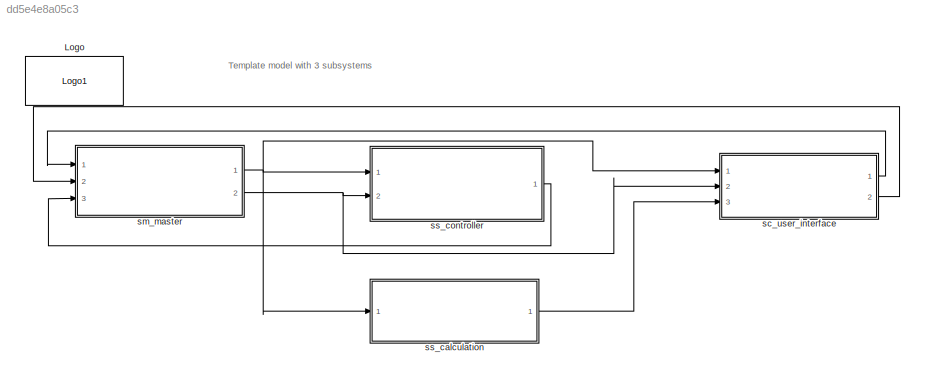
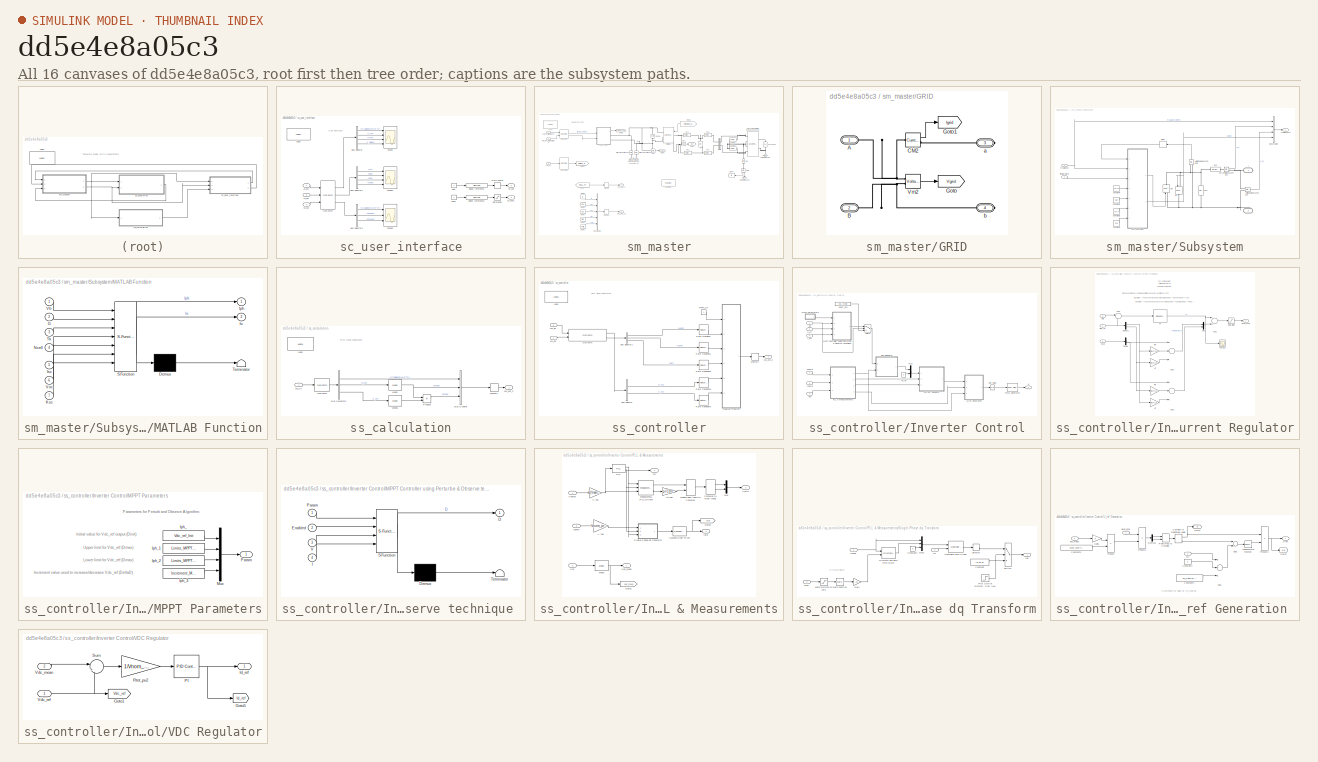
[diagram: thumbnail index - all 16 canvases of the model, root first then tree order]
MODEL slx_dd5e4e8a05c3
KIND model
BLOCK [Reference] Logo  REF=opal_lib/Logo1
  Ports = []
  SourceBlock = opal_lib/Logo1
  SourceType = Opal-RT logo
  vide = []
BLOCK [SubSystem] sc_user_interface
  Ports = [3, 2]
  RequestExecContextInheritance = off
BLOCK [BusSelector] sc_user_interface/Bus Selector
  OutputSignals = Irradiance(W/m^2),I_PV,V_PV,I_Diode
  Ports = [1, 4]
BLOCK [BusSelector] sc_user_interface/Bus Selector1
  OutputSignals = Ig,Vinv,Vdc,Igrid
  Ports = [1, 4]
BLOCK [BusSelector] sc_user_interface/Bus Selector2
  OutputSignals = Irradiance(W/m^2),Vmean,Pmean
  Ports = [1, 3]
BLOCK [Reference] sc_user_interface/Logo  REF=opal_lib/Logo1
  Ports = []
  SourceBlock = opal_lib/Logo1
  SourceType = Opal-RT logo
  vide = []
BLOCK [Reference] sc_user_interface/OpComm  REF=rtlab/OpComm
  Interpolation = on
  Missed_Data = off
  Offset = off
  Ports = [3, 3]
  Samples = off
  Sim_Time = off
  SourceBlock = rtlab/OpComm
  SourceType = RT-LAB OpComm
  Synchronization = on
  Threshold = 1.0
  dynSigOut = off
  from_console = 0
  groupe_acq = 1
  nbport = 3
  st = 0
  subsys_rate = 0
  warning_done = off
  writeOpCommFile = off
BLOCK [RateLimiter] sc_user_interface/Rate Limiter
  FallingSlewLimit = -8000
  InitialCondition = 1000
  RisingSlewLimit = 8000
  SampleTimeMode = inherited
BLOCK [Saturate] sc_user_interface/Saturation
  InputPortMap = u0
  LowerLimit = 5
  Ports = [1, 1]
  UpperLimit = 55
BLOCK [Scope] sc_user_interface/Scope
  DataFormat = StructureWithTime
  Floating = off
  NumInputPorts = 4
  Ports = [4]
  SampleTime = 0
  ShowLegends = off
  YMax = 100~5~5~5
  YMin = 0~-5~-5~-5
BLOCK [Scope] sc_user_interface/Scope1
  DataFormat = StructureWithTime
  Floating = off
  NumInputPorts = 4
  Ports = [4]
  SampleTime = 0
  SaveName = ScopeData1
  ShowLegends = off
  YMax = 100~5~5~5
  YMin = 0~-5~-5~-5
BLOCK [Scope] sc_user_interface/Scope2
  DataFormat = StructureWithTime
  Floating = off
  NumInputPorts = 3
  Ports = [3]
  SampleTime = 0
  SaveName = ScopeData2
  ShowLegends = off
  YMax = 100~5~5
  YMin = 0~-5~-5
BLOCK [Reference] sc_user_interface/adjust reference  REF=simulink/Math
Operations/Slider
Gain
  Ports = [1, 1]
  SourceBlock = simulink/Math\nOperations/Slider\nGain
  SourceType = Slider Gain
  gain = 500
  high = 1000
  low = 0
BLOCK [Reference] sc_user_interface/adjust reference1  REF=simulink/Math
Operations/Slider
Gain
  Ports = [1, 1]
  SourceBlock = simulink/Math\nOperations/Slider\nGain
  SourceType = Slider Gain
  gain = 25
  high = 60
  low = 0
BLOCK [Constant] sc_user_interface/one
BLOCK [Constant] sc_user_interface/one1
BLOCK [Inport] sc_user_interface/sc_in1
  IconDisplay = Port number
BLOCK [Inport] sc_user_interface/sc_in2
  IconDisplay = Port number
  Port = 2
BLOCK [Inport] sc_user_interface/sc_in3
  IconDisplay = Port number
  Port = 3
BLOCK [Outport] sc_user_interface/sc_out
  IconDisplay = Port number
BLOCK [Outport] sc_user_interface/sc_out1
  IconDisplay = Port number
  Port = 2
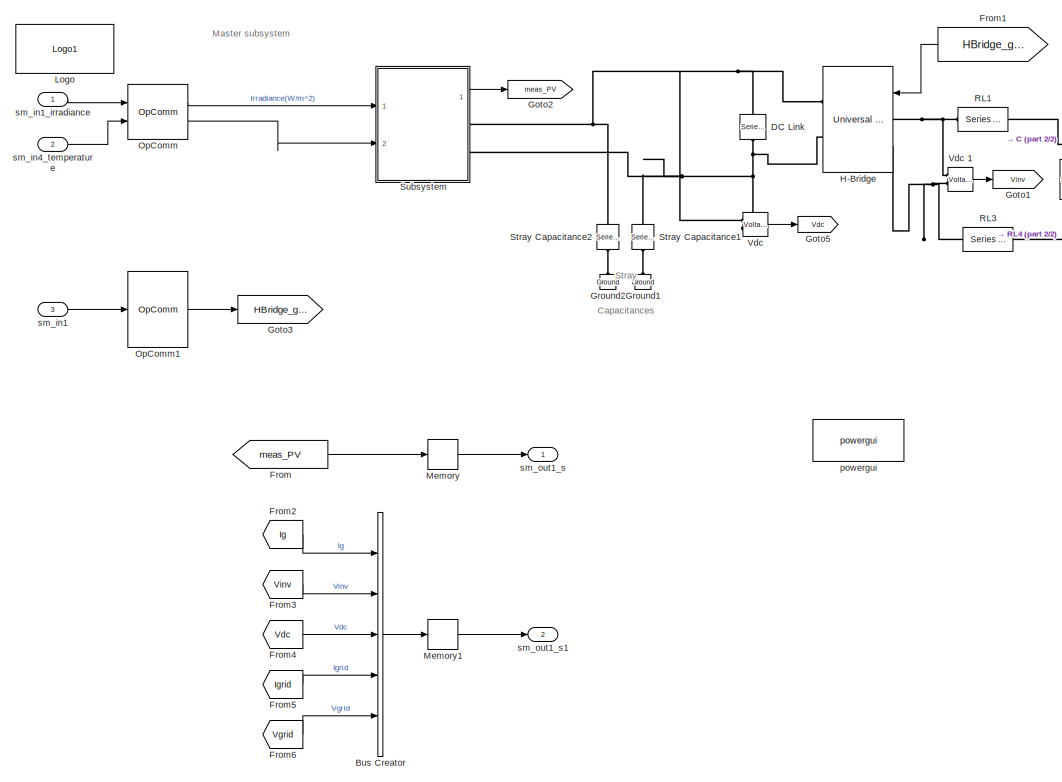
[diagram: sm_master - part 1/2, center side, full height]
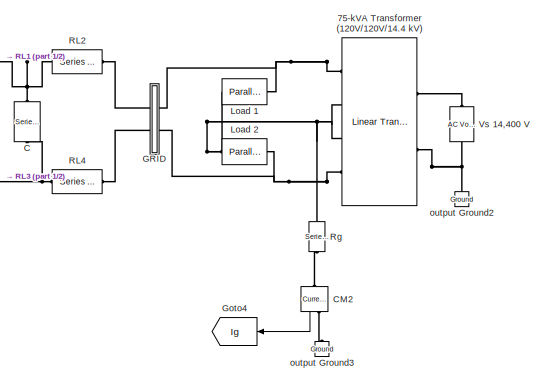
[diagram: sm_master - part 2/2, middle right region]
BLOCK [SubSystem] sm_master
  Ports = [3, 2]
  RequestExecContextInheritance = off
BLOCK [Reference] sm_master/75-kVA Transformer (120V//120V//14.4 kV)  REF=powerlib/Elements/Linear Transformer
  DataType = off
  Measurements = None
  NominalPower = [75e3,60]
  Ports = [0, 0, 0, 0, 0, 2, 4]
  RmLm = [50,50]
  SourceBlock = powerlib/Elements/Linear Transformer
  SourceType = Linear Transformer
  ThreeWindings = on
  UNITS = pu
  winding1 = [14.4e3 0.01,0.03]
  winding2 = [120,0.02,0]
  winding3 = [120,0.02,0]
BLOCK [BusCreator] sm_master/Bus Creator
  DisplayOption = bar
  Inputs = 5
  Ports = [5, 1]
BLOCK [Reference] sm_master/C  REF=powerlib/Elements/Series RLC Load
  ActivePower = 10.5
  AttributesFormatString = \n
  CapacitivePower = 525
  InductivePower = 0
  InitialCurrent = 0
  InitialVoltage = 0
  LConnTagsString = a
  Measurements = None
  NominalFrequency = 60
  NominalVoltage = 240
  Ports = [0, 0, 0, 0, 0, 1, 1]
  RConnTagsString = __new0
  SetiL0 = off
  Setx0 = off
  SourceBlock = powerlib/Elements/Series RLC Load
  SourceType = Series RLC Load
BLOCK [Reference] sm_master/CM2  REF=powerlib/Measurements/Current Measurement
  OutputType = Complex
  PSBequivalent = 0
  PhasorSimulation = off
  Ports = [0, 1, 0, 0, 0, 1, 1]
  SourceBlock = powerlib/Measurements/Current Measurement
  SourceType = Current Measurement
  UserDataPersistent = on
BLOCK [Reference] sm_master/DC Link  REF=powerlib/Elements/Series RLC Branch
  AttributesFormatString = \n
  BranchType = C
  Capacitance = 3000e-6
  Inductance = 1.0
  InitialCurrent = 0
  InitialVoltage = 425
  LConnTagsString = __new0
  Measurements = None
  Ports = [0, 0, 0, 0, 0, 1, 1]
  RConnTagsString = __new0
  Resistance = 1.0
  SetiL0 = off
  Setx0 = on
  SourceBlock = powerlib/Elements/Series RLC Branch
  SourceType = Series RLC Branch
BLOCK [From] sm_master/From
  GotoTag = meas_PV
  TagVisibility = global
BLOCK [From] sm_master/From1
  GotoTag = HBridge_gate
  TagVisibility = global
BLOCK [From] sm_master/From2
  GotoTag = Ig
  TagVisibility = global
BLOCK [From] sm_master/From3
  GotoTag = Vinv
  TagVisibility = global
BLOCK [From] sm_master/From4
  GotoTag = Vdc
  TagVisibility = global
BLOCK [From] sm_master/From5
  GotoTag = Igrid
  TagVisibility = global
BLOCK [From] sm_master/From6
  GotoTag = Vgrid
  TagVisibility = global
BLOCK [SubSystem] sm_master/GRID
  Ports = [0, 0, 0, 0, 0, 2, 2]
  RequestExecContextInheritance = off
BLOCK [PMIOPort] sm_master/GRID/A
  Port = 1
  Side = Left
BLOCK [PMIOPort] sm_master/GRID/B
  Port = 2
  Side = Left
BLOCK [Reference] sm_master/GRID/CM2  REF=powerlib/Measurements/Current Measurement
  OutputType = Complex
  PSBequivalent = 0
  PhasorSimulation = off
  Ports = [0, 1, 0, 0, 0, 1, 1]
  SourceBlock = powerlib/Measurements/Current Measurement
  SourceType = Current Measurement
  UserDataPersistent = on
BLOCK [Goto] sm_master/GRID/Goto
  GotoTag = Vgrid
  TagVisibility = global
BLOCK [Goto] sm_master/GRID/Goto1
  GotoTag = Igrid
  TagVisibility = global
BLOCK [Reference] sm_master/GRID/Vm2  REF=powerlib/Measurements/Voltage Measurement
  OutputType = Complex
  PSBequivalent = 0
  PhasorSimulation = off
  Ports = [0, 1, 0, 0, 0, 2]
  SourceBlock = powerlib/Measurements/Voltage Measurement
  SourceType = Voltage Measurement
  UserDataPersistent = on
BLOCK [PMIOPort] sm_master/GRID/a
  Port = 3
  Side = Right
BLOCK [PMIOPort] sm_master/GRID/b
  Port = 4
  Side = Right
BLOCK [Goto] sm_master/Goto1
  GotoTag = Vinv
  TagVisibility = global
BLOCK [Goto] sm_master/Goto2
  GotoTag = meas_PV
  TagVisibility = global
BLOCK [Goto] sm_master/Goto3
  GotoTag = HBridge_gate
  TagVisibility = global
BLOCK [Goto] sm_master/Goto4
  GotoTag = Ig
  TagVisibility = global
BLOCK [Goto] sm_master/Goto5
  GotoTag = Vdc
  TagVisibility = global
BLOCK [Reference] sm_master/Ground1  REF=powerlib/Elements/Ground
  LConnTagsString = a
  Ports = [0, 0, 0, 0, 0, 1]
  SourceBlock = powerlib/Elements/Ground
  SourceType = Ground
BLOCK [Reference] sm_master/Ground2  REF=powerlib/Elements/Ground
  LConnTagsString = a
  Ports = [0, 0, 0, 0, 0, 1]
  SourceBlock = powerlib/Elements/Ground
  SourceType = Ground
BLOCK [Reference] sm_master/H-Bridge   REF=powerlib/Power
Electronics/Universal Bridge
  Arms = 2
  Device = IGBT / Diodes
  ForwardVoltage = 0
  ForwardVoltages = [ 0 0 ]
  GTOparameters = [ 10e-6 , 20e-6 ]
  IGBTparameters = [ 1e-6 , 2e-6 ]*0
  Lon = 0
  Measurements = None
  Measurements_2 = None
  Ports = [1, 0, 0, 0, 0, 2, 2]
  Ron = 1e-3
  SnubberCapacitance = inf
  SnubberResistance = 1e6
  SourceBlock = powerlib/Power\nElectronics/Universal Bridge
  SourceType = Universal Bridge
  converterType = Rectifier
BLOCK [Reference] sm_master/Load 1  REF=powerlib/Elements/Parallel RLC Load
  ActivePower = 5e3
  AttributesFormatString = \n
  CapacitivePower = 0
  InductivePower = 2e3
  InitialCurrent = 0
  InitialVoltage = 0
  LConnTagsString = a
  Measurements = None
  NominalFrequency = 50
  NominalVoltage = 120
  Ports = [0, 0, 0, 0, 0, 1, 1]
  RConnTagsString = __new0
  SetiL0 = off
  Setx0 = off
  SourceBlock = powerlib/Elements/Parallel RLC Load
  SourceType = Parallel RLC Load
BLOCK [Reference] sm_master/Load 2  REF=powerlib/Elements/Parallel RLC Load
  ActivePower = 5e3
  AttributesFormatString = \n
  CapacitivePower = 0
  InductivePower = 2e3
  InitialCurrent = 0
  InitialVoltage = 0
  LConnTagsString = a
  Measurements = None
  NominalFrequency = 50
  NominalVoltage = 120
  Ports = [0, 0, 0, 0, 0, 1, 1]
  RConnTagsString = __new0
  SetiL0 = off
  Setx0 = off
  SourceBlock = powerlib/Elements/Parallel RLC Load
  SourceType = Parallel RLC Load
BLOCK [Reference] sm_master/Logo  REF=opal_lib/Logo1
  Ports = []
  SourceBlock = opal_lib/Logo1
  SourceType = Opal-RT logo
  vide = []
BLOCK [Memory] sm_master/Memory
  InheritSampleTime = on
BLOCK [Memory] sm_master/Memory1
  InheritSampleTime = on
BLOCK [Reference] sm_master/OpComm  REF=rtlab/OpComm
  Interpolation = on
  Missed_Data = off
  Offset = off
  Ports = [2, 2]
  Samples = off
  Sim_Time = off
  SourceBlock = rtlab/OpComm
  SourceType = RT-LAB OpComm
  Synchronization = on
  Threshold = 1.0
  dynSigOut = off
  from_console = 1
  groupe_acq = 1
  nbport = 2
  st = 0
  subsys_rate = 0
  warning_done = off
  writeOpCommFile = off
BLOCK [Reference] sm_master/OpComm1  REF=rtlab/OpComm
  Interpolation = on
  Missed_Data = off
  Offset = off
  Ports = [1, 1]
  Samples = off
  Sim_Time = off
  SourceBlock = rtlab/OpComm
  SourceType = RT-LAB OpComm
  Synchronization = on
  Threshold = 1.0
  dynSigOut = off
  from_console = 0
  groupe_acq = 1
  nbport = 1
  st = 0
  subsys_rate = 0
  warning_done = off
  writeOpCommFile = off
BLOCK [Reference] sm_master/RL1  REF=powerlib/Elements/Series RLC Branch
  BranchType = RL
  Capacitance = 1e-6
  Inductance = 2.183e-3
  InitialCurrent = 0
  InitialVoltage = 0
  LConnTagsString = __new0
  Measurements = None
  Ports = [0, 0, 0, 0, 0, 1, 1]
  RConnTagsString = __new0
  Resistance = 8.23e-3
  SetiL0 = off
  Setx0 = off
  SourceBlock = powerlib/Elements/Series RLC Branch
  SourceType = Series RLC Branch
BLOCK [Reference] sm_master/RL2  REF=powerlib/Elements/Series RLC Branch
  BranchType = RL
  Capacitance = 1e-6
  Inductance = 2.183e-3
  InitialCurrent = 0
  InitialVoltage = 0
  LConnTagsString = __new0
  Measurements = None
  Ports = [0, 0, 0, 0, 0, 1, 1]
  RConnTagsString = __new0
  Resistance = 8.23e-3
  SetiL0 = off
  Setx0 = off
  SourceBlock = powerlib/Elements/Series RLC Branch
  SourceType = Series RLC Branch
BLOCK [Reference] sm_master/RL3  REF=powerlib/Elements/Series RLC Branch
  BranchType = RL
  Capacitance = 1e-6
  Inductance = 2.183e-3
  InitialCurrent = 0
  InitialVoltage = 0
  LConnTagsString = __new0
  Measurements = None
  Ports = [0, 0, 0, 0, 0, 1, 1]
  RConnTagsString = __new0
  Resistance = 8.23e-3
  SetiL0 = off
  Setx0 = off
  SourceBlock = powerlib/Elements/Series RLC Branch
  SourceType = Series RLC Branch
BLOCK [Reference] sm_master/RL4  REF=powerlib/Elements/Series RLC Branch
  BranchType = RL
  Capacitance = 1e-6
  Inductance = 2.183e-3
  InitialCurrent = 0
  InitialVoltage = 0
  LConnTagsString = __new0
  Measurements = None
  Ports = [0, 0, 0, 0, 0, 1, 1]
  RConnTagsString = __new0
  Resistance = 8.23e-3
  SetiL0 = off
  Setx0 = off
  SourceBlock = powerlib/Elements/Series RLC Branch
  SourceType = Series RLC Branch
BLOCK [Reference] sm_master/Rg  REF=powerlib/Elements/Series RLC Branch
  BranchType = R
  Capacitance = 50e-9
  Inductance = 1
  InitialCurrent = 0
  InitialVoltage = 0
  LConnTagsString = __new0
  Measurements = None
  Ports = [0, 0, 0, 0, 0, 1, 1]
  RConnTagsString = __new0
  Resistance = 0.2
  SetiL0 = off
  Setx0 = off
  SourceBlock = powerlib/Elements/Series RLC Branch
  SourceType = Series RLC Branch
BLOCK [Reference] sm_master/Stray Capacitance1  REF=powerlib/Elements/Series RLC Branch
  BranchType = C
  Capacitance = 4e-9
  Inductance = 1
  InitialCurrent = 0
  InitialVoltage = 0
  LConnTagsString = __new0
  Measurements = None
  Ports = [0, 0, 0, 0, 0, 1, 1]
  RConnTagsString = __new0
  Resistance = 1e-3
  SetiL0 = off
  Setx0 = off
  SourceBlock = powerlib/Elements/Series RLC Branch
  SourceType = Series RLC Branch
BLOCK [Reference] sm_master/Stray Capacitance2  REF=powerlib/Elements/Series RLC Branch
  BranchType = C
  Capacitance = 4e-9
  Inductance = 1
  InitialCurrent = 0
  InitialVoltage = 0
  LConnTagsString = __new0
  Measurements = None
  Ports = [0, 0, 0, 0, 0, 1, 1]
  RConnTagsString = __new0
  Resistance = 1e-3
  SetiL0 = off
  Setx0 = off
  SourceBlock = powerlib/Elements/Series RLC Branch
  SourceType = Series RLC Branch
BLOCK [SubSystem] sm_master/Subsystem
  Ports = [2, 1, 0, 0, 0, 0, 2]
  RequestExecContextInheritance = off
BLOCK [PMIOPort] sm_master/Subsystem/+
  Port = 1
  Side = Right
BLOCK [PMIOPort] sm_master/Subsystem/-
  Port = 2
  Side = Right
BLOCK [BusCreator] sm_master/Subsystem/Bus Creator
  DisplayOption = bar
  Ports = [4, 1]
BLOCK [Constant] sm_master/Subsystem/Constant1
  Value = 8.55
BLOCK [Constant] sm_master/Subsystem/Constant2
  Value = 37.4*14
BLOCK [Constant] sm_master/Subsystem/Constant3
  Value = 0.06
BLOCK [Constant] sm_master/Subsystem/Constant4
  Value = 60*14
BLOCK [Reference] sm_master/Subsystem/Current Measurement  REF=powerlib/Measurements/Current Measurement
  OutputType = Complex
  PSBequivalent = 0
  PhasorSimulation = off
  Ports = [0, 1, 0, 0, 0, 1, 1]
  SourceBlock = powerlib/Measurements/Current Measurement
  SourceType = Current Measurement
  UserDataPersistent = on
BLOCK [Delay] sm_master/Subsystem/Delay
  DelayLength = 1
  InitialCondition = 0
  InputPortMap = u0
  Ports = [1, 1]
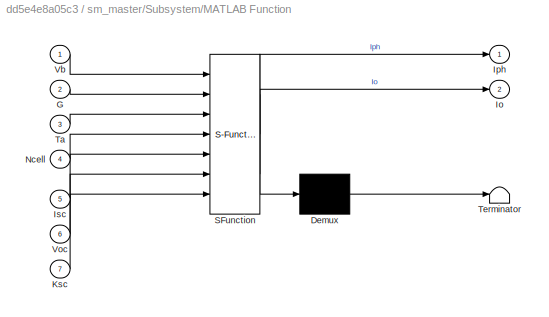
BLOCK [SubSystem] sm_master/Subsystem/MATLAB Function
  ErrorFcn = Stateflow.Translate.translate
  PermitHierarchicalResolution = ExplicitOnly
  Ports = [7, 2]
  RequestExecContextInheritance = off
  SFBlockType = MATLAB Function
  TreatAsAtomicUnit = on
BLOCK [Demux] sm_master/Subsystem/MATLAB Function/ Demux 
  Outputs = 1
  Ports = [1, 1]
BLOCK [S-Function] sm_master/Subsystem/MATLAB Function/ SFunction 
  EnableBusSupport = on
  FunctionName = sf_sfun
  PortCounts = [7 3]
  Ports = [7, 3]
  Tag = Stateflow S-Function my_pv_system_back 1
BLOCK [Terminator] sm_master/Subsystem/MATLAB Function/ Terminator 
BLOCK [Inport] sm_master/Subsystem/MATLAB Function/G
  IconDisplay = Port number
  Port = 2
BLOCK [Outport] sm_master/Subsystem/MATLAB Function/Io
  IconDisplay = Port number
  Port = 2
BLOCK [Outport] sm_master/Subsystem/MATLAB Function/Iph
  IconDisplay = Port number
BLOCK [Inport] sm_master/Subsystem/MATLAB Function/Isc
  IconDisplay = Port number
  Port = 5
BLOCK [Inport] sm_master/Subsystem/MATLAB Function/Ksc
  IconDisplay = Port number
  Port = 7
BLOCK [Inport] sm_master/Subsystem/MATLAB Function/Ncell
  IconDisplay = Port number
  Port = 4
BLOCK [Inport] sm_master/Subsystem/MATLAB Function/Ta
  IconDisplay = Port number
  Port = 3
BLOCK [Inport] sm_master/Subsystem/MATLAB Function/Vb
  IconDisplay = Port number
BLOCK [Inport] sm_master/Subsystem/MATLAB Function/Voc
  IconDisplay = Port number
  Port = 6
BLOCK [Outport] sm_master/Subsystem/PVmeasure
  IconDisplay = Port number
BLOCK [Reference] sm_master/Subsystem/RL2  REF=powerlib/Elements/Series RLC Branch
  BranchType = R
  Capacitance = 1e-6
  Inductance = 2.183e-3
  InitialCurrent = 0
  InitialVoltage = 0
  LConnTagsString = __new0
  Measurements = None
  Ports = [0, 0, 0, 0, 0, 1, 1]
  RConnTagsString = __new0
  Resistance = 0.247*14
  SetiL0 = off
  Setx0 = off
  SourceBlock = powerlib/Elements/Series RLC Branch
  SourceType = Series RLC Branch
BLOCK [Reference] sm_master/Subsystem/RL3  REF=powerlib/Elements/Series RLC Branch
  BranchType = R
  Capacitance = 1e-6
  Inductance = 2.183e-3
  InitialCurrent = 0
  InitialVoltage = 0
  LConnTagsString = __new0
  Measurements = None
  Ports = [0, 0, 0, 0, 0, 1, 1]
  RConnTagsString = __new0
  Resistance = 301.8*14
  SetiL0 = off
  Setx0 = off
  SourceBlock = powerlib/Elements/Series RLC Branch
  SourceType = Series RLC Branch
BLOCK [Reference] sm_master/Subsystem/Voltage Measurement  REF=powerlib/Measurements/Voltage Measurement
  OutputType = Complex
  PSBequivalent = 0
  PhasorSimulation = off
  Ports = [0, 1, 0, 0, 0, 2]
  SourceBlock = powerlib/Measurements/Voltage Measurement
  SourceType = Voltage Measurement
  UserDataPersistent = on
BLOCK [Reference] sm_master/Subsystem/Voltage Measurement1  REF=powerlib/Measurements/Voltage Measurement
  OutputType = Complex
  PSBequivalent = 0
  PhasorSimulation = off
  Ports = [0, 1, 0, 0, 0, 2]
  SourceBlock = powerlib/Measurements/Voltage Measurement
  SourceType = Voltage Measurement
  UserDataPersistent = on
BLOCK [Reference] sm_master/Subsystem/io   REF=powerlib/Electrical
Sources/Controlled Current Source
  Amplitude = 8.05
  Frequency = 0
  Initialize = on
  Measurements = None
  Phase = 0
  Ports = [1, 0, 0, 0, 0, 1, 1]
  SourceBlock = powerlib/Electrical\nSources/Controlled Current Source
  SourceType = Controlled Current Source
  Source_Type = DC
BLOCK [Reference] sm_master/Subsystem/iph   REF=powerlib/Electrical
Sources/Controlled Current Source
  Amplitude = 8.05
  Frequency = 0
  Initialize = on
  Measurements = None
  Phase = 0
  Ports = [1, 0, 0, 0, 0, 1, 1]
  SourceBlock = powerlib/Electrical\nSources/Controlled Current Source
  SourceType = Controlled Current Source
  Source_Type = DC
BLOCK [Inport] sm_master/Subsystem/irradiance
  IconDisplay = Port number
BLOCK [Inport] sm_master/Subsystem/temperature
  IconDisplay = Port number
  Port = 2
BLOCK [Reference] sm_master/Vdc   REF=powerlib/Measurements/Voltage Measurement
  AttributesFormatString = \n
  OutputType = Magnitude
  PSBequivalent = 0
  PhasorSimulation = off
  Ports = [0, 1, 0, 0, 0, 2]
  SourceBlock = powerlib/Measurements/Voltage Measurement
  SourceType = Voltage Measurement
  Tag = PoWeRsYsTeMmEaSuReMeNt
BLOCK [Reference] sm_master/Vdc 1  REF=powerlib/Measurements/Voltage Measurement
  AttributesFormatString = \n
  OutputType = Magnitude
  PSBequivalent = 0
  PhasorSimulation = off
  Ports = [0, 1, 0, 0, 0, 2]
  SourceBlock = powerlib/Measurements/Voltage Measurement
  SourceType = Voltage Measurement
  Tag = PoWeRsYsTeMmEaSuReMeNt
BLOCK [Reference] sm_master/Vs 14,400 V  REF=powerlib/Electrical
Sources/AC Voltage Source
  Amplitude = 14400*sqrt(2)
  AttributesFormatString = \n
  Description = source block
  Frequency = 50
  Measurements = None
  Phase = 0
  Ports = [0, 0, 0, 0, 0, 1, 1]
  SampleTime = 0
  SourceBlock = powerlib/Electrical\nSources/AC Voltage Source
  SourceType = AC Voltage Source
BLOCK [Reference] sm_master/output Ground2  REF=powerlib/Elements/Ground
  AttributesFormatString = \n
  LConnTagsString = a
  Ports = [0, 0, 0, 0, 0, 1]
  SourceBlock = powerlib/Elements/Ground
  SourceType = Ground
BLOCK [Reference] sm_master/output Ground3  REF=powerlib/Elements/Ground
  AttributesFormatString = \n
  LConnTagsString = a
  Ports = [0, 0, 0, 0, 0, 1]
  SourceBlock = powerlib/Elements/Ground
  SourceType = Ground
BLOCK [Reference] sm_master/powergui  REF=powerlib/powergui
  DisableRonSwitches = off
  DisableSnubberDevices = off
  DisableVfSwitches = off
  DisplayEquations = off
  DisplayStyle = 1
  EnableUseOfTLC = off
  ErrMax = 1e-4
  Frange = [0:2:500]
  FreqAxis = on
  FunctionMessages = off
  HookPort = off
  Interpol = off
  Iterations = 50
  MaxFrequency = 10000
  Pbase = 100e6
  Ports = []
  Priority = 1
  ResistiveCurrentMeasurement = off
  RestoreLinks = warning
  RmsSteady = 1
  SPID = off
  SampleTime = 1e-6
  ShowGrid = off
  SolverType = Tustin/Backward Euler (TBE)
  SourceBlock = powerlib/powergui
  SourceType = PSB option menu block
  StartTime = 0.55
  SwTol = 0
  Ts = 0
  UnitsV = kV
  UnitsW = MW
  UserDataPersistent = on
  Xlog = on
  Ylog = off
  ZoomFFT = off
  cycles = 1
  display = off
  echomessages = off
  frequency = 60
  frequencyindice = 0
  frequencyindicesteady = 1
  fundamental = 60
  methode = off
  save = off
  structure = VIgrid
  variable = ZData
  x0status = blocks
BLOCK [Inport] sm_master/sm_in1
  IconDisplay = Port number
  Port = 3
BLOCK [Inport] sm_master/sm_in1_irradiance
  IconDisplay = Port number
BLOCK [Inport] sm_master/sm_in4_temperature
  IconDisplay = Port number
  Port = 2
BLOCK [Outport] sm_master/sm_out1_s
  IconDisplay = Port number
BLOCK [Outport] sm_master/sm_out1_s1
  IconDisplay = Port number
  Port = 2
BLOCK [SubSystem] ss_calculation
  Ports = [1, 1]
  RequestExecContextInheritance = off
BLOCK [BusCreator] ss_calculation/Bus Creator
  DisplayOption = bar
  Inputs = 3
  Ports = [3, 1]
BLOCK [BusSelector] ss_calculation/Bus Selector1
  OutputSignals = Irradiance(W/m^2),V_PV,I_PV
  Ports = [1, 3]
BLOCK [Reference] ss_calculation/Logo  REF=opal_lib/Logo1
  Ports = []
  SourceBlock = opal_lib/Logo1
  SourceType = Opal-RT logo
  vide = []
BLOCK [Reference] ss_calculation/Mean  REF=powerlib_meascontrol/Measurements/Mean
  Freq = 50
  Ports = [1, 1]
  SourceBlock = powerlib_meascontrol/Measurements/Mean
  SourceType = Mean
  Ts = 1e-6
  Vinit = 406
BLOCK [Reference] ss_calculation/Mean1  REF=powerlib_meascontrol/Measurements/Mean
  Freq = 50
  Ports = [1, 1]
  SourceBlock = powerlib_meascontrol/Measurements/Mean
  SourceType = Mean
  Ts = 1e-6
  Vinit = 8.05
BLOCK [Memory] ss_calculation/Memory
  InheritSampleTime = on
BLOCK [Reference] ss_calculation/OpComm  REF=rtlab/OpComm
  Interpolation = on
  Missed_Data = off
  Offset = off
  Ports = [1, 1]
  Samples = off
  Sim_Time = off
  SourceBlock = rtlab/OpComm
  SourceType = RT-LAB OpComm
  Synchronization = on
  Threshold = 1.0
  dynSigOut = off
  from_console = 0
  groupe_acq = 1
  nbport = 1
  st = 0
  subsys_rate = 0
  warning_done = off
  writeOpCommFile = off
BLOCK [Product] ss_calculation/Product
  InputSameDT = off
  OutDataTypeStr = Inherit: Inherit via internal rule
  Ports = [2, 1]
  RndMeth = Floor
  SaturateOnIntegerOverflow = off
BLOCK [Inport] ss_calculation/ss1_in
  IconDisplay = Port number
BLOCK [Outport] ss_calculation/ss1_out_s
  IconDisplay = Port number
BLOCK [SubSystem] ss_controller
  Ports = [2, 1]
  RequestExecContextInheritance = off
BLOCK [BusSelector] ss_controller/Bus Selector
  OutputSignals = V_PV,I_PV
  Ports = [1, 2]
BLOCK [BusSelector] ss_controller/Bus Selector1
  OutputSignals = Vgrid,Igrid,Vdc
  Ports = [1, 3]
BLOCK [SubSystem] ss_controller/Inverter Control
  Ports = [6, 1]
  RequestExecContextInheritance = off
BLOCK [SubSystem] ss_controller/Inverter Control/Current Regulator
  Ports = [3, 1]
  RequestExecContextInheritance = off
BLOCK [Sum] ss_controller/Inverter Control/Current Regulator/Add1
  InputSameDT = off
  Inputs = ++-
  OutDataTypeStr = Inherit: Inherit via internal rule
  Ports = [3, 1]
  SaturateOnIntegerOverflow = off
BLOCK [Sum] ss_controller/Inverter Control/Current Regulator/Add2
  InputSameDT = off
  OutDataTypeStr = Inherit: Inherit via internal rule
  Ports = [2, 1]
  SaturateOnIntegerOverflow = off
BLOCK [Sum] ss_controller/Inverter Control/Current Regulator/Add3
  InputSameDT = off
  Inputs = +++
  OutDataTypeStr = Inherit: Inherit via internal rule
  Ports = [3, 1]
  SaturateOnIntegerOverflow = off
BLOCK [Demux] ss_controller/Inverter Control/Current Regulator/Demux
  DisplayOption = bar
  Outputs = 2
  Ports = [1, 2]
BLOCK [Demux] ss_controller/Inverter Control/Current Regulator/Demux1
  DisplayOption = bar
  Outputs = 2
  Ports = [1, 2]
BLOCK [Inport] ss_controller/Inverter Control/Current Regulator/IdIq
  IconDisplay = Port number
  Port = 3
  PortDimensions = 2
BLOCK [Inport] ss_controller/Inverter Control/Current Regulator/IdIq_ref
  IconDisplay = Port number
  PortDimensions = 2
BLOCK [Gain] ss_controller/Inverter Control/Current Regulator/Lff
  Gain = RLff(2)
BLOCK [Gain] ss_controller/Inverter Control/Current Regulator/Lff  
  Gain = RLff(2)
BLOCK [Mux] ss_controller/Inverter Control/Current Regulator/Mux
  DisplayOption = bar
  Inputs = 2
  Ports = [2, 1]
BLOCK [Reference] ss_controller/Inverter Control/Current Regulator/PI  REF=simulink/Continuous/PID Controller
  AntiWindupMode = none
  Controller = PI
  D = 0
  DOutDataTypeStr = Inherit: Inherit via internal rule
  DOutMax = []
  DOutMin = []
  DParamDataTypeStr = Inherit: Inherit via internal rule
  DParamMax = []
  DParamMin = []
  DifferentiatorICPrevScaledInput = 0
  DifferentiatorOutDataTypeStr = Inherit: Inherit via internal rule
  DifferentiatorOutMax = []
  DifferentiatorOutMin = []
  ExternalReset = none
  FilterContinuousStateAttributes = ''
  FilterMethod = Forward Euler
  FilterOutDataTypeStr = Inherit: Inherit via internal rule
  FilterOutMax = []
  FilterOutMin = []
  FilterRTWStateStorageClass = Auto
  FilterStateMustResolveToSignalObject = off
  Form = Parallel
  I = Ki_Ireg
  IOutDataTypeStr = Inherit: Inherit via internal rule
  IOutMax = []
  IOutMin = []
  IParamDataTypeStr = Inherit: Inherit via internal rule
  IParamMax = []
  IParamMin = []
  IgnoreLimit = off
  InitialConditionForFilter = 0
  InitialConditionForIntegrator = 0
  InitialConditionSource = internal
  IntegratorContinuousStateAttributes = ''
  IntegratorMethod = Forward Euler
  IntegratorOutDataTypeStr = Inherit: Inherit via internal rule
  IntegratorOutMax = []
  IntegratorOutMin = []
  IntegratorRTWStateStorageClass = Auto
  IntegratorStateMustResolveToSignalObject = off
  Kb = 1
  KbOutDataTypeStr = Inherit: Inherit via internal rule
  KbOutMax = []
  KbOutMin = []
  KbParamDataTypeStr = Inherit: Inherit via internal rule
  KbParamMax = []
  KbParamMin = []
  Kt = 1
  KtOutDataTypeStr = Inherit: Inherit via internal rule
  KtOutMax = []
  KtOutMin = []
  KtParamDataTypeStr = Inherit: Inherit via internal rule
  KtParamMax = []
  KtParamMin = []
  LimitOutput = on
  LinearizeAsGain = off
  LockScale = off
  LowerSaturationLimit = -1.5
  N = 100
  NOutDataTypeStr = Inherit: Inherit via internal rule
  NOutMax = []
  NOutMin = []
  NParamDataTypeStr = Inherit: Inherit via internal rule
  NParamMax = []
  NParamMin = []
  P = Kp_Ireg
  POutDataTypeStr = Inherit: Inherit via internal rule
  POutMax = []
  POutMin = []
  PParamDataTypeStr = Inherit: Inherit via internal rule
  PParamMax = []
  PParamMin = []
  Ports = [1, 1]
  RndMeth = Floor
  SampleTime = Ts_Control
  SaturateOnIntegerOverflow = off
  SaturationOutDataTypeStr = Inherit: Same as input
  SaturationOutMax = []
  SaturationOutMin = []
  SourceBlock = simulink/Continuous/PID Controller
  SourceType = PID 1dof
  SumAccumDataTypeStr = Inherit: Inherit via internal rule
  SumDAccumDataTypeStr = Inherit: Inherit via internal rule
  SumDOutDataTypeStr = Inherit: Inherit via internal rule
  SumDOutMax = []
  SumDOutMin = []
  SumI1AccumDataTypeStr = Inherit: Inherit via internal rule
  SumI1OutDataTypeStr = Inherit: Inherit via internal rule
  SumI1OutMax = []
  SumI1OutMin = []
  SumI2AccumDataTypeStr = Inherit: Inherit via internal rule
  SumI2OutDataTypeStr = Inherit: Inherit via internal rule
  SumI2OutMax = []
  SumI2OutMin = []
  SumI3AccumDataTypeStr = Inherit: Inherit via internal rule
  SumI3OutDataTypeStr = Inherit: Inherit via internal rule
  SumI3OutMax = []
  SumI3OutMin = []
  SumOutDataTypeStr = Inherit: Inherit via internal rule
  SumOutMax = []
  SumOutMin = []
  TimeDomain = Discrete-time
  TrackingMode = off
  UpperSaturationLimit = 1.5
  UseFilter = on
  ZeroCross = on
BLOCK [Scope] ss_controller/Inverter Control/Current Regulator/PI_Ireg1
  Floating = off
  LimitDataPoints = off
  NumInputPorts = 1
  Ports = [1]
  ShowLegends = off
  YMax = 0.45
  YMin = -0.25
BLOCK [Gain] ss_controller/Inverter Control/Current Regulator/Rff
  Gain = RLff(1)
BLOCK [Gain] ss_controller/Inverter Control/Current Regulator/Rff 
  Gain = RLff(1)
BLOCK [Saturate] ss_controller/Inverter Control/Current Regulator/Saturation
  InputPortMap = u0
  LowerLimit = -1.5
  Ports = [1, 1]
  UpperLimit = 1.5
BLOCK [Sum] ss_controller/Inverter Control/Current Regulator/Sum
  IconShape = round
  InputSameDT = off
  Inputs = |-+
  OutDataTypeStr = Inherit: Inherit via internal rule
  Ports = [2, 1]
  SaturateOnIntegerOverflow = off
BLOCK [Inport] ss_controller/Inverter Control/Current Regulator/VdVq
  IconDisplay = Port number
  Port = 2
  PortDimensions = 2
BLOCK [Outport] ss_controller/Inverter Control/Current Regulator/VdVq_conv
  IconDisplay = Port number
BLOCK [Inport] ss_controller/Inverter Control/I_PV
  IconDisplay = Port number
  Port = 6
  PortDimensions = 1
BLOCK [Inport] ss_controller/Inverter Control/Ihome
  IconDisplay = Port number
  Port = 3
  PortDimensions = 1
BLOCK [Constant] ss_controller/Inverter Control/Iq_ref
  Value = 0
BLOCK [SubSystem] ss_controller/Inverter Control/MPPT Controller using Perturbe & Observe technique 
  ErrorFcn = Stateflow.Translate.translate
  PermitHierarchicalResolution = ExplicitOnly
  Ports = [4, 1]
  RequestExecContextInheritance = off
  SFBlockType = MATLAB Function
  TreatAsAtomicUnit = on
BLOCK [Demux] ss_controller/Inverter Control/MPPT Controller using Perturbe & Observe technique / Demux 
  Outputs = 1
  Ports = [1, 1]
BLOCK [S-Function] ss_controller/Inverter Control/MPPT Controller using Perturbe & Observe technique / SFunction 
  EnableBusSupport = on
  FunctionName = sf_sfun
  PortCounts = [4 2]
  Ports = [4, 2]
  Tag = Stateflow S-Function my_pv_system_back 2
BLOCK [Terminator] ss_controller/Inverter Control/MPPT Controller using Perturbe & Observe technique / Terminator 
BLOCK [Outport] ss_controller/Inverter Control/MPPT Controller using Perturbe & Observe technique /D
  IconDisplay = Port number
BLOCK [Inport] ss_controller/Inverter Control/MPPT Controller using Perturbe & Observe technique /Enabled
  IconDisplay = Port number
  Port = 2
BLOCK [Inport] ss_controller/Inverter Control/MPPT Controller using Perturbe & Observe technique /I
  IconDisplay = Port number
  Port = 4
BLOCK [Inport] ss_controller/Inverter Control/MPPT Controller using Perturbe & Observe technique /Param
  IconDisplay = Port number
BLOCK [Inport] ss_controller/Inverter Control/MPPT Controller using Perturbe & Observe technique /V
  IconDisplay = Port number
  Port = 3
BLOCK [SubSystem] ss_controller/Inverter Control/MPPT Parameters
  Ports = [0, 1]
  RequestExecContextInheritance = off
BLOCK [Constant] ss_controller/Inverter Control/MPPT Parameters/Iph_
  Value = Vdc_ref_Init
BLOCK [Constant] ss_controller/Inverter Control/MPPT Parameters/Iph_1
  Value = Limits_MPPT(1)
BLOCK [Constant] ss_controller/Inverter Control/MPPT Parameters/Iph_2
  Value = Limits_MPPT(2)
BLOCK [Constant] ss_controller/Inverter Control/MPPT Parameters/Iph_3
  Value = Increment_MPPT
BLOCK [Mux] ss_controller/Inverter Control/MPPT Parameters/Mux
  DisplayOption = bar
  Ports = [4, 1]
BLOCK [Outport] ss_controller/Inverter Control/MPPT Parameters/Param
  IconDisplay = Port number
BLOCK [Mux] ss_controller/Inverter Control/Mux
  DisplayOption = bar
  Inputs = 2
  Ports = [2, 1]
BLOCK [Inport] ss_controller/Inverter Control/On
  IconDisplay = Port number
  PortDimensions = 1
BLOCK [SubSystem] ss_controller/Inverter Control/PLL & Measurements
  Ports = [3, 4]
  RequestExecContextInheritance = off
BLOCK [Gain] ss_controller/Inverter Control/PLL & Measurements/A->pu
  Gain = Vnom_prim/Pnom/sqrt(2)
BLOCK [ComplexToRealImag] ss_controller/Inverter Control/PLL & Measurements/Complex to Real-Imag
  Ports = [1, 2]
BLOCK [Reference] ss_controller/Inverter Control/PLL & Measurements/Fundamental (PLL-Driven)  REF=powerlib_meascontrol/Measurements/Fundamental
(PLL-Driven)
  Finit = Fnom
  Fmin = 45
  InInit = [1, 0]
  Ports = [3, 2]
  SourceBlock = powerlib_meascontrol/Measurements/Fundamental\n(PLL-Driven)
  SourceType = Fundamental (PLL-Driven)
  Ts = Ts_Control
BLOCK [Goto] ss_controller/Inverter Control/PLL & Measurements/Goto1
  GotoTag = Vdc_mean
  TagVisibility = global
BLOCK [Goto] ss_controller/Inverter Control/PLL & Measurements/Goto3
  GotoTag = IdIq
  TagVisibility = global
BLOCK [Outport] ss_controller/Inverter Control/PLL & Measurements/IdIq
  IconDisplay = Port number
  Port = 3
BLOCK [Inport] ss_controller/Inverter Control/PLL & Measurements/Ihome
  IconDisplay = Port number
  Port = 2
BLOCK [MagnitudeAngleToComplex] ss_controller/Inverter Control/PLL & Measurements/Magnitude-Angle to Complex
  Ports = [2, 1]
BLOCK [Reference] ss_controller/Inverter Control/PLL & Measurements/Mean  REF=powerlib_meascontrol/Measurements/Mean
  Freq = Fnom
  Ports = [1, 1]
  SourceBlock = powerlib_meascontrol/Measurements/Mean
  SourceType = Mean
  Ts = Ts_Control
  Vinit = Vdc_ref_Init
BLOCK [Mux] ss_controller/Inverter Control/PLL & Measurements/Mux
  DisplayOption = bar
  Inputs = 2
  Ports = [2, 1]
BLOCK [Reference] ss_controller/Inverter Control/PLL & Measurements/PLL  REF=powerlib_meascontrol/PLL/PLL
  AGC = on
  FilterCutOffFreq = 25
  Fmin = 40
  MaxRateChangeFreq = 12
  ParK = [180, 3200, 1]
  Par_Init = [0, Fnom]
  Ports = [1, 2]
  SourceBlock = powerlib_meascontrol/PLL/PLL
  SourceType = PLL
  TcD = 1e-4
  Ts = Ts_Control
BLOCK [Reference] ss_controller/Inverter Control/PLL & Measurements/Second-Order Filter  REF=powerlib_meascontrol/Filters/Second-Order
Filter
  FilterType = Lowpass
  Fo = 2000
  FreqRange = [0, 500, 1]
  Initialize = on
  PlotResponse = off
  Ports = [1, 1]
  SourceBlock = powerlib_meascontrol/Filters/Second-Order\nFilter
  SourceType = Second-Order Filter
  Ts = Ts_Control
  Vac_Init = [0,  0,  60;0,0,60]
  Vdc_Init = [0.9 0]
  Zeta = 1
BLOCK [SubSystem] ss_controller/Inverter Control/PLL & Measurements/Single-Phase dq Transform
  Ports = [3, 1]
  RequestExecContextInheritance = off
BLOCK [Reference] ss_controller/Inverter Control/PLL & Measurements/Single-Phase dq Transform/Alpha-Beta-Zero to dq0  REF=powerlib_meascontrol/Transformations/Alpha-Beta-Zero
to dq0
  Alignment = 90 degrees behind phase A axis
  Ports = [2, 1]
  SourceBlock = powerlib_meascontrol/Transformations/Alpha-Beta-Zero\nto dq0
  SourceType = Alpha-Beta-Zero to dq0 Transformation
BLOCK [Constant] ss_controller/Inverter Control/PLL & Measurements/Single-Phase dq Transform/Constant
  Value = [0.92 0]
BLOCK [Constant] ss_controller/Inverter Control/PLL & Measurements/Single-Phase dq Transform/Constant1
  Value = 0
BLOCK [Reference] ss_controller/Inverter Control/PLL & Measurements/Single-Phase dq Transform/Discrete Variable Time Delay  REF=powerlib_meascontrol/Additional Components/Discrete Variable
Time Delay
  DFT = on
  InitialValue = 0
  MaxDelay = 1
  Ports = [2, 1]
  SourceBlock = powerlib_meascontrol/Additional Components/Discrete Variable\nTime Delay
  SourceType = Discrete Variable Time Delay
  Ts = Ts_Control
BLOCK [Step] ss_controller/Inverter Control/PLL & Measurements/Single-Phase dq Transform/First cycle of simulation Id=0.92, Iq=0
  SampleTime = Ts_Control
  Time = 1/Fnom
BLOCK [Inport] ss_controller/Inverter Control/PLL & Measurements/Single-Phase dq Transform/Freq
  IconDisplay = Port number
  Port = 3
BLOCK [Gain] ss_controller/Inverter Control/PLL & Measurements/Single-Phase dq Transform/Gain
  Gain = 1/4
  OutDataTypeStr = Inherit: Inherit via internal rule
  ParamDataTypeStr = Inherit: Inherit via internal rule
  SaturateOnIntegerOverflow = off
BLOCK [Outport] ss_controller/Inverter Control/PLL & Measurements/Single-Phase dq Transform/Idq
  IconDisplay = Port number
BLOCK [Inport] ss_controller/Inverter Control/PLL & Measurements/Single-Phase dq Transform/Imeas
  IconDisplay = Port number
BLOCK [Math] ss_controller/Inverter Control/PLL & Measurements/Single-Phase dq Transform/Math Function
  Operator = reciprocal
  Ports = [1, 1]
BLOCK [Mux] ss_controller/Inverter Control/PLL & Measurements/Single-Phase dq Transform/Mux1
  DisplayOption = bar
  Inputs = 3
  Ports = [3, 1]
BLOCK [Selector] ss_controller/Inverter Control/PLL & Measurements/Single-Phase dq Transform/Selector
  Indices = [1 2]
  InputPortWidth = 3
  Ports = [1, 1]
BLOCK [Switch] ss_controller/Inverter Control/PLL & Measurements/Single-Phase dq Transform/Switch
  Criteria = u2 ~= 0
  InputSameDT = off
  SaturateOnIntegerOverflow = off
BLOCK [Saturate] ss_controller/Inverter Control/PLL & Measurements/Single-Phase dq Transform/avoid division by zero
  InputPortMap = u0
  LowerLimit = 40
  Ports = [1, 1]
  UpperLimit = 70
BLOCK [Inport] ss_controller/Inverter Control/PLL & Measurements/Single-Phase dq Transform/wt
  IconDisplay = Port number
  Port = 2
BLOCK [Gain] ss_controller/Inverter Control/PLL & Measurements/V->pu
  Gain = 1/(Vnom_prim*sqrt(2))
BLOCK [Outport] ss_controller/Inverter Control/PLL & Measurements/VdVq
  IconDisplay = Port number
  Port = 2
BLOCK [Inport] ss_controller/Inverter Control/PLL & Measurements/Vdc
  IconDisplay = Port number
  Port = 3
BLOCK [Outport] ss_controller/Inverter Control/PLL & Measurements/Vdc_mean
  IconDisplay = Port number
BLOCK [Inport] ss_controller/Inverter Control/PLL & Measurements/Vhome
  IconDisplay = Port number
BLOCK [Gain] ss_controller/Inverter Control/PLL & Measurements/to-rad
  Gain = pi/180
  OutDataTypeStr = Inherit: Inherit via internal rule
  ParamDataTypeStr = Inherit: Inherit via internal rule
  SaturateOnIntegerOverflow = off
BLOCK [Outport] ss_controller/Inverter Control/PLL & Measurements/wt
  IconDisplay = Port number
  Port = 4
BLOCK [Reference] ss_controller/Inverter Control/PWM_Generator  REF=powerlib_meascontrol/Pulse & Signal
Generators/PWM Generator
(2-Level)
  AttributesFormatString = %<ModulatorType>
  Fc = Fc
  Freq = 60
  MinMax = [ -1  1 ]
  ModulatingSignals = off
  ModulatorMode = Unsynchronized
  ModulatorType = Single-phase full-bridge - Bipolar modulation (4 pulses)
  Pc = 90
  Phase = 0
  Ports = [1, 1]
  SamplingTechnique = Natural
  ShowCarrierOutport = off
  SourceBlock = powerlib_meascontrol/Pulse & Signal\nGenerators/PWM Generator\n(2-Level)
  SourceType = PWM Generator (2-Level)
  Ts = Ts_PWMgenerator
  m = 0.8
  nF = 27
BLOCK [Switch] ss_controller/Inverter Control/Switch
  Criteria = u2 ~= 0
  InputSameDT = off
  SaturateOnIntegerOverflow = off
BLOCK [SubSystem] ss_controller/Inverter Control/U_ref Generation 
  Ports = [3, 1]
  RequestExecContextInheritance = off
BLOCK [Sum] ss_controller/Inverter Control/U_ref Generation /Add1
  InputSameDT = off
  Inputs = +++
  OutDataTypeStr = Inherit: Inherit via internal rule
  Ports = [3, 1]
  SaturateOnIntegerOverflow = off
BLOCK [Sum] ss_controller/Inverter Control/U_ref Generation /Add2
  InputSameDT = off
  OutDataTypeStr = Inherit: Inherit via internal rule
  Ports = [2, 1]
  SaturateOnIntegerOverflow = off
BLOCK [ComplexToMagnitudeAngle] ss_controller/Inverter Control/U_ref Generation /Complex to Magnitude-Angle
  Ports = [1, 2]
BLOCK [Constant] ss_controller/Inverter Control/U_ref Generation /Constant2
  Value = 0
BLOCK [Constant] ss_controller/Inverter Control/U_ref Generation /Constant3
  Value = Vnom_prim*sqrt(2)
BLOCK [Constant] ss_controller/Inverter Control/U_ref Generation /Constant4
  Value = Ts_Control*Fnom*(2*pi)
BLOCK [Demux] ss_controller/Inverter Control/U_ref Generation /Demux1
  DisplayOption = bar
  Outputs = 2
  Ports = [1, 2]
BLOCK [Gain] ss_controller/Inverter Control/U_ref Generation /Gain1
  OutDataTypeStr = Inherit: Inherit via internal rule
  ParamDataTypeStr = Inherit: Inherit via internal rule
  SaturateOnIntegerOverflow = off
BLOCK [Goto] ss_controller/Inverter Control/U_ref Generation /Goto1
  GotoTag = m
  TagVisibility = global
BLOCK [Goto] ss_controller/Inverter Control/U_ref Generation /Goto2
  GotoTag = Uref
  TagVisibility = global
BLOCK [Product] ss_controller/Inverter Control/U_ref Generation /Product
  InputSameDT = off
  Inputs = */
  OutDataTypeStr = Inherit: Inherit via internal rule
  Ports = [2, 1]
  SaturateOnIntegerOverflow = off
BLOCK [Product] ss_controller/Inverter Control/U_ref Generation /Product1
  InputSameDT = off
  Inputs = */
  OutDataTypeStr = Inherit: Inherit via internal rule
  Ports = [2, 1]
  SaturateOnIntegerOverflow = off
BLOCK [Product] ss_controller/Inverter Control/U_ref Generation /Product2
  InputSameDT = off
  Inputs = **
  OutDataTypeStr = Inherit: Inherit via internal rule
  Ports = [2, 1]
  SaturateOnIntegerOverflow = off
BLOCK [RealImagToComplex] ss_controller/Inverter Control/U_ref Generation /Real-Imag to Complex
  Ports = [2, 1]
BLOCK [Trigonometry] ss_controller/Inverter Control/U_ref Generation /Trigonometric Function
  Ports = [1, 1]
BLOCK [Outport] ss_controller/Inverter Control/U_ref Generation /Uref
  IconDisplay = Port number
BLOCK [Inport] ss_controller/Inverter Control/U_ref Generation /VdVq_conv
  IconDisplay = Port number
BLOCK [Inport] ss_controller/Inverter Control/U_ref Generation /Vdc_mean
  IconDisplay = Port number
  Port = 3
BLOCK [Inport] ss_controller/Inverter Control/U_ref Generation /wt
  IconDisplay = Port number
  Port = 2
BLOCK [UnitDelay] ss_controller/Inverter Control/Unit Delay
  InitialCondition = 0.1684
  InputProcessing = Elements as channels (sample based)
  SampleTime = Ts_Control
BLOCK [SubSystem] ss_controller/Inverter Control/VDC Regulator
  Ports = [2, 1]
  RequestExecContextInheritance = off
BLOCK [Goto] ss_controller/Inverter Control/VDC Regulator/Goto1
  GotoTag = Vdc_ref
  TagVisibility = global
BLOCK [Goto] ss_controller/Inverter Control/VDC Regulator/Goto5
  GotoTag = Id_ref
  TagVisibility = global
BLOCK [Outport] ss_controller/Inverter Control/VDC Regulator/Id_ref
  IconDisplay = Port number
  InitialOutput = 0
BLOCK [Reference] ss_controller/Inverter Control/VDC Regulator/PI  REF=simulink/Continuous/PID Controller
  AntiWindupMode = none
  Controller = PI
  D = 0
  DOutDataTypeStr = Inherit: Inherit via internal rule
  DOutMax = []
  DOutMin = []
  DParamDataTypeStr = Inherit: Inherit via internal rule
  DParamMax = []
  DParamMin = []
  DifferentiatorICPrevScaledInput = 0
  DifferentiatorOutDataTypeStr = Inherit: Inherit via internal rule
  DifferentiatorOutMax = []
  DifferentiatorOutMin = []
  ExternalReset = none
  FilterContinuousStateAttributes = ''
  FilterMethod = Forward Euler
  FilterOutDataTypeStr = Inherit: Inherit via internal rule
  FilterOutMax = []
  FilterOutMin = []
  FilterRTWStateStorageClass = Auto
  FilterStateMustResolveToSignalObject = off
  Form = Parallel
  I = Ki_VDCreg
  IOutDataTypeStr = Inherit: Inherit via internal rule
  IOutMax = []
  IOutMin = []
  IParamDataTypeStr = Inherit: Inherit via internal rule
  IParamMax = []
  IParamMin = []
  IgnoreLimit = off
  InitialConditionForFilter = 0
  InitialConditionForIntegrator = 0.9226
  InitialConditionSource = internal
  IntegratorContinuousStateAttributes = ''
  IntegratorMethod = Trapezoidal
  IntegratorOutDataTypeStr = Inherit: Inherit via internal rule
  IntegratorOutMax = []
  IntegratorOutMin = []
  IntegratorRTWStateStorageClass = Auto
  IntegratorStateMustResolveToSignalObject = off
  Kb = 1
  KbOutDataTypeStr = Inherit: Inherit via internal rule
  KbOutMax = []
  KbOutMin = []
  KbParamDataTypeStr = Inherit: Inherit via internal rule
  KbParamMax = []
  KbParamMin = []
  Kt = 1
  KtOutDataTypeStr = Inherit: Inherit via internal rule
  KtOutMax = []
  KtOutMin = []
  KtParamDataTypeStr = Inherit: Inherit via internal rule
  KtParamMax = []
  KtParamMin = []
  LimitOutput = on
  LinearizeAsGain = off
  LockScale = off
  LowerSaturationLimit = -1.5
  N = 100
  NOutDataTypeStr = Inherit: Inherit via internal rule
  NOutMax = []
  NOutMin = []
  NParamDataTypeStr = Inherit: Inherit via internal rule
  NParamMax = []
  NParamMin = []
  P = Kp_VDCreg
  POutDataTypeStr = Inherit: Inherit via internal rule
  POutMax = []
  POutMin = []
  PParamDataTypeStr = Inherit: Inherit via internal rule
  PParamMax = []
  PParamMin = []
  Ports = [1, 1]
  RndMeth = Floor
  SampleTime = Ts_Control
  SaturateOnIntegerOverflow = off
  SaturationOutDataTypeStr = Inherit: Same as input
  SaturationOutMax = []
  SaturationOutMin = []
  SourceBlock = simulink/Continuous/PID Controller
  SourceType = PID 1dof
  SumAccumDataTypeStr = Inherit: Inherit via internal rule
  SumDAccumDataTypeStr = Inherit: Inherit via internal rule
  SumDOutDataTypeStr = Inherit: Inherit via internal rule
  SumDOutMax = []
  SumDOutMin = []
  SumI1AccumDataTypeStr = Inherit: Inherit via internal rule
  SumI1OutDataTypeStr = Inherit: Inherit via internal rule
  SumI1OutMax = []
  SumI1OutMin = []
  SumI2AccumDataTypeStr = Inherit: Inherit via internal rule
  SumI2OutDataTypeStr = Inherit: Inherit via internal rule
  SumI2OutMax = []
  SumI2OutMin = []
  SumI3AccumDataTypeStr = Inherit: Inherit via internal rule
  SumI3OutDataTypeStr = Inherit: Inherit via internal rule
  SumI3OutMax = []
  SumI3OutMin = []
  SumOutDataTypeStr = Inherit: Inherit via internal rule
  SumOutMax = []
  SumOutMin = []
  TimeDomain = Discrete-time
  TrackingMode = off
  UpperSaturationLimit = 1.5
  UseFilter = on
  ZeroCross = on
BLOCK [Gain] ss_controller/Inverter Control/VDC Regulator/Rtot_pu2
  Gain = 1/Vnom_dc
BLOCK [Sum] ss_controller/Inverter Control/VDC Regulator/Sum
  IconShape = round
  InputSameDT = off
  Inputs = |+-
  OutDataTypeStr = Inherit: Inherit via internal rule
  Ports = [2, 1]
  SaturateOnIntegerOverflow = off
BLOCK [Inport] ss_controller/Inverter Control/VDC Regulator/Vdc_mean
  IconDisplay = Port number
  Port = 2
  PortDimensions = 1
BLOCK [Inport] ss_controller/Inverter Control/VDC Regulator/Vdc_ref
  IconDisplay = Port number
  PortDimensions = 1
BLOCK [Inport] ss_controller/Inverter Control/V_PV
  IconDisplay = Port number
  Port = 5
  PortDimensions = 1
BLOCK [Inport] ss_controller/Inverter Control/Vdc
  IconDisplay = Port number
  Port = 4
  PortDimensions = 1
BLOCK [Inport] ss_controller/Inverter Control/Vhome
  IconDisplay = Port number
  Port = 2
  PortDimensions = 1
BLOCK [Constant] ss_controller/Inverter Control/Vnom_dc1
  Value = Vdc_ref_Init
BLOCK [Outport] ss_controller/Inverter Control/g
  IconDisplay = Port number
BLOCK [Reference] ss_controller/Logo  REF=opal_lib/Logo1
  Ports = []
  SourceBlock = opal_lib/Logo1
  SourceType = Opal-RT logo
  vide = []
BLOCK [Constant] ss_controller/MPPT_On
BLOCK [Memory] ss_controller/Memory
  InheritSampleTime = on
BLOCK [Reference] ss_controller/OpComm  REF=rtlab/OpComm
  Interpolation = on
  Missed_Data = off
  Offset = off
  Ports = [2, 2]
  Samples = off
  Sim_Time = off
  SourceBlock = rtlab/OpComm
  SourceType = RT-LAB OpComm
  Synchronization = on
  Threshold = 1.0
  dynSigOut = off
  from_console = 0
  groupe_acq = 1
  nbport = 2
  st = 0
  subsys_rate = 0
  warning_done = off
  writeOpCommFile = off
BLOCK [RateTransition] ss_controller/Rate Transition
BLOCK [RateTransition] ss_controller/Rate Transition1
BLOCK [RateTransition] ss_controller/Rate Transition2
BLOCK [RateTransition] ss_controller/Rate Transition3
BLOCK [RateTransition] ss_controller/Rate Transition4
BLOCK [Inport] ss_controller/ss1_in1
  IconDisplay = Port number
BLOCK [Inport] ss_controller/ss1_in2
  IconDisplay = Port number
  Port = 2
BLOCK [Outport] ss_controller/ss1_out_s
  IconDisplay = Port number
ANNOTATION (root): Template model with 3 subsystems
ANNOTATION sc_user_interface: User interface
ANNOTATION sm_master: Master subsystem
ANNOTATION sm_master: Stray Capacitances
ANNOTATION ss_calculation: First slave subsystem
ANNOTATION ss_controller: First slave subsystem
ANNOTATION ss_controller/Inverter Control/Current Regulator: Capacitor neglected
ANNOTATION ss_controller/Inverter Control/Current Regulator: Current Regulator (with feedforward)
ANNOTATION ss_controller/Inverter Control/Current Regulator: Id positive --> The converter generates active power ("Inverter mode") = Active Power P positive
ANNOTATION ss_controller/Inverter Control/Current Regulator: Iq positive --> The converter absorbs reactive power ("Inductive mode") = Reactive Power Q negative
ANNOTATION ss_controller/Inverter Control/Current Regulator: Sign Convention: Current going out of the converter = positive current
ANNOTATION ss_controller/Inverter Control/MPPT Parameters: Increment value used to increase/decrease Vdc_ref (DeltaD)
ANNOTATION ss_controller/Inverter Control/MPPT Parameters: Initial value for Vdc_ref output (Dinit)
ANNOTATION ss_controller/Inverter Control/MPPT Parameters: Lower limit for Vdc_ref (Dmax)
ANNOTATION ss_controller/Inverter Control/MPPT Parameters: Parameters for Perturb and Observe Algorithm:
ANNOTATION ss_controller/Inverter Control/MPPT Parameters: Upper limit for Vdc_ref (Dmax)
ANNOTATION ss_controller/Inverter Control/PLL & Measurements/Single-Phase dq Transform: 1/4 cycle delay
ANNOTATION ss_controller/Inverter Control/U_ref Generation : (Correction for delay of Ts_Control)
LINE sc_user_interface/Bus Selector1:1 -> sc_user_interface/Scope1:1
LINE sc_user_interface/Bus Selector1:2 -> sc_user_interface/Scope1:2
LINE sc_user_interface/Bus Selector1:3 -> sc_user_interface/Scope1:3
LINE sc_user_interface/Bus Selector1:4 -> sc_user_interface/Scope1:4
LINE sc_user_interface/Bus Selector2:1 -> sc_user_interface/Scope2:1
LINE sc_user_interface/Bus Selector2:2 -> sc_user_interface/Scope2:2
LINE sc_user_interface/Bus Selector2:3 -> sc_user_interface/Scope2:3
LINE sc_user_interface/Bus Selector:1 -> sc_user_interface/Scope:1
LINE sc_user_interface/Bus Selector:2 -> sc_user_interface/Scope:2
LINE sc_user_interface/Bus Selector:3 -> sc_user_interface/Scope:3
LINE sc_user_interface/Bus Selector:4 -> sc_user_interface/Scope:4
LINE sc_user_interface/OpComm:1 -> sc_user_interface/Bus Selector:1
LINE sc_user_interface/OpComm:2 -> sc_user_interface/Bus Selector1:1
LINE sc_user_interface/OpComm:3 -> sc_user_interface/Bus Selector2:1
LINE sc_user_interface/Rate Limiter:1 -> sc_user_interface/sc_out:1
LINE sc_user_interface/Saturation:1 -> sc_user_interface/sc_out1:1
LINE sc_user_interface/adjust reference1:1 -> sc_user_interface/Saturation:1
LINE sc_user_interface/adjust reference:1 -> sc_user_interface/Rate Limiter:1
LINE sc_user_interface/one1:1 -> sc_user_interface/adjust reference1:1
LINE sc_user_interface/one:1 -> sc_user_interface/adjust reference:1
LINE sc_user_interface/sc_in1:1 -> sc_user_interface/OpComm:1
LINE sc_user_interface/sc_in2:1 -> sc_user_interface/OpComm:2
LINE sc_user_interface/sc_in3:1 -> sc_user_interface/OpComm:3
LINE sc_user_interface:1 -> sm_master:1
LINE sc_user_interface:2 -> sm_master:2
LINE sm_master/Bus Creator:1 -> sm_master/Memory1:1
LINE sm_master/CM2:1 -> sm_master/Goto4:1
LINE sm_master/From1:1 -> sm_master/H-Bridge :1
LINE sm_master/From2:1 -> sm_master/Bus Creator:1
LINE sm_master/From3:1 -> sm_master/Bus Creator:2
LINE sm_master/From4:1 -> sm_master/Bus Creator:3
LINE sm_master/From5:1 -> sm_master/Bus Creator:4
LINE sm_master/From6:1 -> sm_master/Bus Creator:5
LINE sm_master/From:1 -> sm_master/Memory:1
LINE sm_master/GRID/CM2:1 -> sm_master/GRID/Goto1:1
LINE sm_master/GRID/Vm2:1 -> sm_master/GRID/Goto:1
LINE sm_master/Memory1:1 -> sm_master/sm_out1_s1:1
LINE sm_master/Memory:1 -> sm_master/sm_out1_s:1
LINE sm_master/OpComm1:1 -> sm_master/Goto3:1
LINE sm_master/OpComm:1 -> sm_master/Subsystem:1
LINE sm_master/OpComm:2 -> sm_master/Subsystem:2
LINE sm_master/Subsystem/Bus Creator:1 -> sm_master/Subsystem/PVmeasure:1
LINE sm_master/Subsystem/Constant1:1 -> sm_master/Subsystem/MATLAB Function:5
LINE sm_master/Subsystem/Constant2:1 -> sm_master/Subsystem/MATLAB Function:6
LINE sm_master/Subsystem/Constant3:1 -> sm_master/Subsystem/MATLAB Function:7
LINE sm_master/Subsystem/Constant4:1 -> sm_master/Subsystem/MATLAB Function:4
LINE sm_master/Subsystem/Current Measurement:1 -> sm_master/Subsystem/Bus Creator:2
LINE sm_master/Subsystem/Delay:1 -> sm_master/Subsystem/MATLAB Function:1
LINE sm_master/Subsystem/MATLAB Function:1 -> sm_master/Subsystem/iph :1
NET sm_master/Subsystem/MATLAB Function:2 -> sm_master/Subsystem/Bus Creator:4, sm_master/Subsystem/io :1
LINE sm_master/Subsystem/Voltage Measurement1:1 -> sm_master/Subsystem/Delay:1
LINE sm_master/Subsystem/Voltage Measurement:1 -> sm_master/Subsystem/Bus Creator:3
NET sm_master/Subsystem/irradiance:1 -> sm_master/Subsystem/Bus Creator:1, sm_master/Subsystem/MATLAB Function:2
LINE sm_master/Subsystem/temperature:1 -> sm_master/Subsystem/MATLAB Function:3
LINE sm_master/Subsystem:1 -> sm_master/Goto2:1
LINE sm_master/Vdc 1:1 -> sm_master/Goto1:1
LINE sm_master/Vdc :1 -> sm_master/Goto5:1
LINE sm_master/sm_in1:1 -> sm_master/OpComm1:1
LINE sm_master/sm_in1_irradiance:1 -> sm_master/OpComm:1
LINE sm_master/sm_in4_temperature:1 -> sm_master/OpComm:2
NET sm_master:1 -> sc_user_interface:1, ss_calculation:1, ss_controller:1
NET sm_master:2 -> sc_user_interface:2, ss_controller:2
LINE ss_calculation/Bus Creator:1 -> ss_calculation/Memory:1
LINE ss_calculation/Bus Selector1:1 -> ss_calculation/Bus Creator:1
LINE ss_calculation/Bus Selector1:2 -> ss_calculation/Mean:1
LINE ss_calculation/Bus Selector1:3 -> ss_calculation/Mean1:1
LINE ss_calculation/Mean1:1 -> ss_calculation/Product:2
NET ss_calculation/Mean:1 -> ss_calculation/Bus Creator:2, ss_calculation/Product:1
LINE ss_calculation/Memory:1 -> ss_calculation/ss1_out_s:1
LINE ss_calculation/OpComm:1 -> ss_calculation/Bus Selector1:1
LINE ss_calculation/Product:1 -> ss_calculation/Bus Creator:3
LINE ss_calculation/ss1_in:1 -> ss_calculation/OpComm:1
LINE ss_calculation:1 -> sc_user_interface:3
LINE ss_controller/Bus Selector1:1 -> ss_controller/Rate Transition:1
LINE ss_controller/Bus Selector1:2 -> ss_controller/Rate Transition1:1
LINE ss_controller/Bus Selector1:3 -> ss_controller/Rate Transition2:1
LINE ss_controller/Bus Selector:1 -> ss_controller/Rate Transition3:1
LINE ss_controller/Bus Selector:2 -> ss_controller/Rate Transition4:1
LINE ss_controller/Inverter Control/Current Regulator/Add1:1 -> ss_controller/Inverter Control/Current Regulator/Mux:1
LINE ss_controller/Inverter Control/Current Regulator/Add2:1 -> ss_controller/Inverter Control/Current Regulator/Saturation:1
LINE ss_controller/Inverter Control/Current Regulator/Add3:1 -> ss_controller/Inverter Control/Current Regulator/Mux:2
NET ss_controller/Inverter Control/Current Regulator/Demux1:1 -> ss_controller/Inverter Control/Current Regulator/Lff:1, ss_controller/Inverter Control/Current Regulator/Rff :1
NET ss_controller/Inverter Control/Current Regulator/Demux1:2 -> ss_controller/Inverter Control/Current Regulator/Lff  :1, ss_controller/Inverter Control/Current Regulator/Rff:1
LINE ss_controller/Inverter Control/Current Regulator/Demux:1 -> ss_controller/Inverter Control/Current Regulator/Add1:1
LINE ss_controller/Inverter Control/Current Regulator/Demux:2 -> ss_controller/Inverter Control/Current Regulator/Add3:1
LINE ss_controller/Inverter Control/Current Regulator/IdIq:1 -> ss_controller/Inverter Control/Current Regulator/Sum:1
NET ss_controller/Inverter Control/Current Regulator/IdIq_ref:1 -> ss_controller/Inverter Control/Current Regulator/Demux1:1, ss_controller/Inverter Control/Current Regulator/Sum:2
LINE ss_controller/Inverter Control/Current Regulator/Lff  :1 -> ss_controller/Inverter Control/Current Regulator/Add1:3
LINE ss_controller/Inverter Control/Current Regulator/Lff:1 -> ss_controller/Inverter Control/Current Regulator/Add3:3
LINE ss_controller/Inverter Control/Current Regulator/Mux:1 -> ss_controller/Inverter Control/Current Regulator/Add2:2
NET ss_controller/Inverter Control/Current Regulator/PI:1 -> ss_controller/Inverter Control/Current Regulator/Add2:1, ss_controller/Inverter Control/Current Regulator/PI_Ireg1:1
LINE ss_controller/Inverter Control/Current Regulator/Rff :1 -> ss_controller/Inverter Control/Current Regulator/Add1:2
LINE ss_controller/Inverter Control/Current Regulator/Rff:1 -> ss_controller/Inverter Control/Current Regulator/Add3:2
LINE ss_controller/Inverter Control/Current Regulator/Saturation:1 -> ss_controller/Inverter Control/Current Regulator/VdVq_conv:1
LINE ss_controller/Inverter Control/Current Regulator/Sum:1 -> ss_controller/Inverter Control/Current Regulator/PI:1
LINE ss_controller/Inverter Control/Current Regulator/VdVq:1 -> ss_controller/Inverter Control/Current Regulator/Demux:1
LINE ss_controller/Inverter Control/Current Regulator:1 -> ss_controller/Inverter Control/U_ref Generation :1
LINE ss_controller/Inverter Control/I_PV:1 -> ss_controller/Inverter Control/MPPT Controller using Perturbe & Observe technique :4
LINE ss_controller/Inverter Control/Ihome:1 -> ss_controller/Inverter Control/PLL & Measurements:2
LINE ss_controller/Inverter Control/Iq_ref:1 -> ss_controller/Inverter Control/Mux:2
LINE ss_controller/Inverter Control/MPPT Controller using Perturbe & Observe technique :1 -> ss_controller/Inverter Control/Switch:1
LINE ss_controller/Inverter Control/MPPT Parameters/Iph_1:1 -> ss_controller/Inverter Control/MPPT Parameters/Mux:2
LINE ss_controller/Inverter Control/MPPT Parameters/Iph_2:1 -> ss_controller/Inverter Control/MPPT Parameters/Mux:3
LINE ss_controller/Inverter Control/MPPT Parameters/Iph_3:1 -> ss_controller/Inverter Control/MPPT Parameters/Mux:4
LINE ss_controller/Inverter Control/MPPT Parameters/Iph_:1 -> ss_controller/Inverter Control/MPPT Parameters/Mux:1
LINE ss_controller/Inverter Control/MPPT Parameters/Mux:1 -> ss_controller/Inverter Control/MPPT Parameters/Param:1
LINE ss_controller/Inverter Control/MPPT Parameters:1 -> ss_controller/Inverter Control/MPPT Controller using Perturbe & Observe technique :1
LINE ss_controller/Inverter Control/Mux:1 -> ss_controller/Inverter Control/Current Regulator:1
NET ss_controller/Inverter Control/On:1 -> ss_controller/Inverter Control/MPPT Controller using Perturbe & Observe technique :2, ss_controller/Inverter Control/Switch:2
LINE ss_controller/Inverter Control/PLL & Measurements/A->pu:1 -> ss_controller/Inverter Control/PLL & Measurements/Single-Phase dq Transform:1
LINE ss_controller/Inverter Control/PLL & Measurements/Complex to Real-Imag:1 -> ss_controller/Inverter Control/PLL & Measurements/Mux:1
LINE ss_controller/Inverter Control/PLL & Measurements/Complex to Real-Imag:2 -> ss_controller/Inverter Control/PLL & Measurements/Mux:2
LINE ss_controller/Inverter Control/PLL & Measurements/Fundamental (PLL-Driven):1 -> ss_controller/Inverter Control/PLL & Measurements/Magnitude-Angle to Complex:1
LINE ss_controller/Inverter Control/PLL & Measurements/Fundamental (PLL-Driven):2 -> ss_controller/Inverter Control/PLL & Measurements/to-rad:1
LINE ss_controller/Inverter Control/PLL & Measurements/Ihome:1 -> ss_controller/Inverter Control/PLL & Measurements/A->pu:1
LINE ss_controller/Inverter Control/PLL & Measurements/Magnitude-Angle to Complex:1 -> ss_controller/Inverter Control/PLL & Measurements/Complex to Real-Imag:1
NET ss_controller/Inverter Control/PLL & Measurements/Mean:1 -> ss_controller/Inverter Control/PLL & Measurements/Goto1:1, ss_controller/Inverter Control/PLL & Measurements/Vdc_mean:1
LINE ss_controller/Inverter Control/PLL & Measurements/Mux:1 -> ss_controller/Inverter Control/PLL & Measurements/VdVq:1
NET ss_controller/Inverter Control/PLL & Measurements/PLL:1 -> ss_controller/Inverter Control/PLL & Measurements/Fundamental (PLL-Driven):1, ss_controller/Inverter Control/PLL & Measurements/Single-Phase dq Transform:3
NET ss_controller/Inverter Control/PLL & Measurements/PLL:2 -> ss_controller/Inverter Control/PLL & Measurements/Fundamental (PLL-Driven):2, ss_controller/Inverter Control/PLL & Measurements/Single-Phase dq Transform:2, ss_controller/Inverter Control/PLL & Measurements/wt:1
NET ss_controller/Inverter Control/PLL & Measurements/Second-Order Filter:1 -> ss_controller/Inverter Control/PLL & Measurements/Goto3:1, ss_controller/Inverter Control/PLL & Measurements/IdIq:1
LINE ss_controller/Inverter Control/PLL & Measurements/Single-Phase dq Transform/Alpha-Beta-Zero to dq0:1 -> ss_controller/Inverter Control/PLL & Measurements/Single-Phase dq Transform/Selector:1
LINE ss_controller/Inverter Control/PLL & Measurements/Single-Phase dq Transform/Constant1:1 -> ss_controller/Inverter Control/PLL & Measurements/Single-Phase dq Transform/Mux1:3
LINE ss_controller/Inverter Control/PLL & Measurements/Single-Phase dq Transform/Constant:1 -> ss_controller/Inverter Control/PLL & Measurements/Single-Phase dq Transform/Switch:3
LINE ss_controller/Inverter Control/PLL & Measurements/Single-Phase dq Transform/Discrete Variable Time Delay:1 -> ss_controller/Inverter Control/PLL & Measurements/Single-Phase dq Transform/Mux1:2
LINE ss_controller/Inverter Control/PLL & Measurements/Single-Phase dq Transform/First cycle of simulation Id=0.92, Iq=0:1 -> ss_controller/Inverter Control/PLL & Measurements/Single-Phase dq Transform/Switch:2
LINE ss_controller/Inverter Control/PLL & Measurements/Single-Phase dq Transform/Freq:1 -> ss_controller/Inverter Control/PLL & Measurements/Single-Phase dq Transform/avoid division by zero:1
LINE ss_controller/Inverter Control/PLL & Measurements/Single-Phase dq Transform/Gain:1 -> ss_controller/Inverter Control/PLL & Measurements/Single-Phase dq Transform/Discrete Variable Time Delay:2
NET ss_controller/Inverter Control/PLL & Measurements/Single-Phase dq Transform/Imeas:1 -> ss_controller/Inverter Control/PLL & Measurements/Single-Phase dq Transform/Discrete Variable Time Delay:1, ss_controller/Inverter Control/PLL & Measurements/Single-Phase dq Transform/Mux1:1
LINE ss_controller/Inverter Control/PLL & Measurements/Single-Phase dq Transform/Math Function:1 -> ss_controller/Inverter Control/PLL & Measurements/Single-Phase dq Transform/Gain:1
LINE ss_controller/Inverter Control/PLL & Measurements/Single-Phase dq Transform/Mux1:1 -> ss_controller/Inverter Control/PLL & Measurements/Single-Phase dq Transform/Alpha-Beta-Zero to dq0:1
LINE ss_controller/Inverter Control/PLL & Measurements/Single-Phase dq Transform/Selector:1 -> ss_controller/Inverter Control/PLL & Measurements/Single-Phase dq Transform/Switch:1
LINE ss_controller/Inverter Control/PLL & Measurements/Single-Phase dq Transform/Switch:1 -> ss_controller/Inverter Control/PLL & Measurements/Single-Phase dq Transform/Idq:1
LINE ss_controller/Inverter Control/PLL & Measurements/Single-Phase dq Transform/avoid division by zero:1 -> ss_controller/Inverter Control/PLL & Measurements/Single-Phase dq Transform/Math Function:1
LINE ss_controller/Inverter Control/PLL & Measurements/Single-Phase dq Transform/wt:1 -> ss_controller/Inverter Control/PLL & Measurements/Single-Phase dq Transform/Alpha-Beta-Zero to dq0:2
LINE ss_controller/Inverter Control/PLL & Measurements/Single-Phase dq Transform:1 -> ss_controller/Inverter Control/PLL & Measurements/Second-Order Filter:1
NET ss_controller/Inverter Control/PLL & Measurements/V->pu:1 -> ss_controller/Inverter Control/PLL & Measurements/Fundamental (PLL-Driven):3, ss_controller/Inverter Control/PLL & Measurements/PLL:1
LINE ss_controller/Inverter Control/PLL & Measurements/Vdc:1 -> ss_controller/Inverter Control/PLL & Measurements/Mean:1
LINE ss_controller/Inverter Control/PLL & Measurements/Vhome:1 -> ss_controller/Inverter Control/PLL & Measurements/V->pu:1
LINE ss_controller/Inverter Control/PLL & Measurements/to-rad:1 -> ss_controller/Inverter Control/PLL & Measurements/Magnitude-Angle to Complex:2
NET ss_controller/Inverter Control/PLL & Measurements:1 -> ss_controller/Inverter Control/U_ref Generation :3, ss_controller/Inverter Control/VDC Regulator:2
LINE ss_controller/Inverter Control/PLL & Measurements:2 -> ss_controller/Inverter Control/Current Regulator:2
LINE ss_controller/Inverter Control/PLL & Measurements:3 -> ss_controller/Inverter Control/Current Regulator:3
LINE ss_controller/Inverter Control/PLL & Measurements:4 -> ss_controller/Inverter Control/U_ref Generation :2
LINE ss_controller/Inverter Control/PWM_Generator:1 -> ss_controller/Inverter Control/g:1
LINE ss_controller/Inverter Control/Switch:1 -> ss_controller/Inverter Control/VDC Regulator:1
LINE ss_controller/Inverter Control/U_ref Generation /Add1:1 -> ss_controller/Inverter Control/U_ref Generation /Add2:2
LINE ss_controller/Inverter Control/U_ref Generation /Add2:1 -> ss_controller/Inverter Control/U_ref Generation /Trigonometric Function:1
NET ss_controller/Inverter Control/U_ref Generation /Complex to Magnitude-Angle:1 -> ss_controller/Inverter Control/U_ref Generation /Goto1:1, ss_controller/Inverter Control/U_ref Generation /Product2:1
LINE ss_controller/Inverter Control/U_ref Generation /Complex to Magnitude-Angle:2 -> ss_controller/Inverter Control/U_ref Generation /Add2:1
LINE ss_controller/Inverter Control/U_ref Generation /Constant2:1 -> ss_controller/Inverter Control/U_ref Generation /Add1:2
LINE ss_controller/Inverter Control/U_ref Generation /Constant3:1 -> ss_controller/Inverter Control/U_ref Generation /Product:2
LINE ss_controller/Inverter Control/U_ref Generation /Constant4:1 -> ss_controller/Inverter Control/U_ref Generation /Add1:3
LINE ss_controller/Inverter Control/U_ref Generation /Demux1:1 -> ss_controller/Inverter Control/U_ref Generation /Real-Imag to Complex:1
LINE ss_controller/Inverter Control/U_ref Generation /Demux1:2 -> ss_controller/Inverter Control/U_ref Generation /Real-Imag to Complex:2
LINE ss_controller/Inverter Control/U_ref Generation /Gain1:1 -> ss_controller/Inverter Control/U_ref Generation /Product:1
LINE ss_controller/Inverter Control/U_ref Generation /Product1:1 -> ss_controller/Inverter Control/U_ref Generation /Demux1:1
NET ss_controller/Inverter Control/U_ref Generation /Product2:1 -> ss_controller/Inverter Control/U_ref Generation /Goto2:1, ss_controller/Inverter Control/U_ref Generation /Uref:1
LINE ss_controller/Inverter Control/U_ref Generation /Product:1 -> ss_controller/Inverter Control/U_ref Generation /Product1:2
LINE ss_controller/Inverter Control/U_ref Generation /Real-Imag to Complex:1 -> ss_controller/Inverter Control/U_ref Generation /Complex to Magnitude-Angle:1
LINE ss_controller/Inverter Control/U_ref Generation /Trigonometric Function:1 -> ss_controller/Inverter Control/U_ref Generation /Product2:2
LINE ss_controller/Inverter Control/U_ref Generation /VdVq_conv:1 -> ss_controller/Inverter Control/U_ref Generation /Product1:1
LINE ss_controller/Inverter Control/U_ref Generation /Vdc_mean:1 -> ss_controller/Inverter Control/U_ref Generation /Gain1:1
LINE ss_controller/Inverter Control/U_ref Generation /wt:1 -> ss_controller/Inverter Control/U_ref Generation /Add1:1
LINE ss_controller/Inverter Control/U_ref Generation :1 -> ss_controller/Inverter Control/Unit Delay:1
LINE ss_controller/Inverter Control/Unit Delay:1 -> ss_controller/Inverter Control/PWM_Generator:1
NET ss_controller/Inverter Control/VDC Regulator/PI:1 -> ss_controller/Inverter Control/VDC Regulator/Goto5:1, ss_controller/Inverter Control/VDC Regulator/Id_ref:1
LINE ss_controller/Inverter Control/VDC Regulator/Rtot_pu2:1 -> ss_controller/Inverter Control/VDC Regulator/PI:1
LINE ss_controller/Inverter Control/VDC Regulator/Sum:1 -> ss_controller/Inverter Control/VDC Regulator/Rtot_pu2:1
LINE ss_controller/Inverter Control/VDC Regulator/Vdc_mean:1 -> ss_controller/Inverter Control/VDC Regulator/Sum:1
NET ss_controller/Inverter Control/VDC Regulator/Vdc_ref:1 -> ss_controller/Inverter Control/VDC Regulator/Goto1:1, ss_controller/Inverter Control/VDC Regulator/Sum:2
LINE ss_controller/Inverter Control/VDC Regulator:1 -> ss_controller/Inverter Control/Mux:1
LINE ss_controller/Inverter Control/V_PV:1 -> ss_controller/Inverter Control/MPPT Controller using Perturbe & Observe technique :3
LINE ss_controller/Inverter Control/Vdc:1 -> ss_controller/Inverter Control/PLL & Measurements:3
LINE ss_controller/Inverter Control/Vhome:1 -> ss_controller/Inverter Control/PLL & Measurements:1
LINE ss_controller/Inverter Control/Vnom_dc1:1 -> ss_controller/Inverter Control/Switch:3
LINE ss_controller/Inverter Control:1 -> ss_controller/Memory:1
LINE ss_controller/MPPT_On:1 -> ss_controller/Inverter Control:1
LINE ss_controller/Memory:1 -> ss_controller/ss1_out_s:1
LINE ss_controller/OpComm:1 -> ss_controller/Bus Selector:1
LINE ss_controller/OpComm:2 -> ss_controller/Bus Selector1:1
LINE ss_controller/Rate Transition1:1 -> ss_controller/Inverter Control:3
LINE ss_controller/Rate Transition2:1 -> ss_controller/Inverter Control:4
LINE ss_controller/Rate Transition3:1 -> ss_controller/Inverter Control:5
LINE ss_controller/Rate Transition4:1 -> ss_controller/Inverter Control:6
LINE ss_controller/Rate Transition:1 -> ss_controller/Inverter Control:2
LINE ss_controller/ss1_in1:1 -> ss_controller/OpComm:1
LINE ss_controller/ss1_in2:1 -> ss_controller/OpComm:2
LINE ss_controller:1 -> sm_master:3
PLINE sm_master/75-kVA Transformer (120V//120V//14.4 kV):LConn1 -- sm_master/Vs 14,400 V:RConn1
PNET net1: sm_master/75-kVA Transformer (120V//120V//14.4 kV):LConn2 -- sm_master/Vs 14,400 V:LConn1 -- sm_master/output Ground2:LConn1
PNET net2: sm_master/75-kVA Transformer (120V//120V//14.4 kV):RConn1 -- sm_master/GRID:RConn1 -- sm_master/Load 1:RConn1
PNET net3: sm_master/75-kVA Transformer (120V//120V//14.4 kV):RConn2 -- sm_master/75-kVA Transformer (120V//120V//14.4 kV):RConn3 -- sm_master/Load 1:LConn1 -- sm_master/Load 2:LConn1 -- sm_master/Rg:LConn1
PNET net4: sm_master/75-kVA Transformer (120V//120V//14.4 kV):RConn4 -- sm_master/GRID:RConn2 -- sm_master/Load 2:RConn1
PNET net5: sm_master/C:LConn1 -- sm_master/RL3:RConn1 -- sm_master/RL4:LConn1
PNET net6: sm_master/C:RConn1 -- sm_master/RL1:RConn1 -- sm_master/RL2:LConn1
PLINE sm_master/CM2:LConn1 -- sm_master/Rg:RConn1
PLINE sm_master/CM2:RConn1 -- sm_master/output Ground3:LConn1
PNET net7: sm_master/DC Link:LConn1 -- sm_master/H-Bridge :RConn1 -- sm_master/Stray Capacitance2:LConn1 -- sm_master/Subsystem:RConn1 -- sm_master/Vdc :LConn1
PNET net8: sm_master/DC Link:RConn1 -- sm_master/H-Bridge :RConn2 -- sm_master/Stray Capacitance1:LConn1 -- sm_master/Subsystem:RConn2 -- sm_master/Vdc :LConn2
PNET net9: sm_master/GRID/A:RConn1 -- sm_master/GRID/CM2:LConn1 -- sm_master/GRID/Vm2:LConn1
PNET net10: sm_master/GRID/B:RConn1 -- sm_master/GRID/Vm2:LConn2 -- sm_master/GRID/b:RConn1
PLINE sm_master/GRID/CM2:RConn1 -- sm_master/GRID/a:RConn1
PLINE sm_master/GRID:LConn1 -- sm_master/RL2:RConn1
PLINE sm_master/GRID:LConn2 -- sm_master/RL4:RConn1
PLINE sm_master/Ground1:LConn1 -- sm_master/Stray Capacitance1:RConn1
PLINE sm_master/Ground2:LConn1 -- sm_master/Stray Capacitance2:RConn1
PNET net11: sm_master/H-Bridge :LConn1 -- sm_master/RL1:LConn1 -- sm_master/Vdc 1:LConn1
PNET net12: sm_master/H-Bridge :LConn2 -- sm_master/RL3:LConn1 -- sm_master/Vdc 1:LConn2
PNET net13: sm_master/Subsystem/+:RConn1 -- sm_master/Subsystem/Current Measurement:RConn1 -- sm_master/Subsystem/Voltage Measurement:LConn1
PNET net14: sm_master/Subsystem/-:RConn1 -- sm_master/Subsystem/RL3:LConn1 -- sm_master/Subsystem/Voltage Measurement1:LConn2 -- sm_master/Subsystem/Voltage Measurement:LConn2 -- sm_master/Subsystem/io :RConn1 -- sm_master/Subsystem/iph :LConn1
PLINE sm_master/Subsystem/Current Measurement:LConn1 -- sm_master/Subsystem/RL2:RConn1
PNET net15: sm_master/Subsystem/RL2:LConn1 -- sm_master/Subsystem/RL3:RConn1 -- sm_master/Subsystem/Voltage Measurement1:LConn1 -- sm_master/Subsystem/io :LConn1 -- sm_master/Subsystem/iph :RConn1
note: NET lines group one-source signal fan-out (src -> all destinations, sorted); 1:1 wires keep LINE; PNET lines group multi-terminal physical nets as a canonical sorted terminal list (undirected conserving connections); 2-terminal nets keep the pairwise PLINE form
CHART sm_master/Subsystem/MATLAB Function states=1 transitions=1
  STATE_LABEL 'eML_blk_kernel()'
  STATE_LABEL 'SCRIPT:\nfunction [Iph, Io] = PVpanel_new(Vb, G, Ta, Ncell, Isc, Voc, Ksc)\n\n    toKelvin = 273;\n    Ksc = Ksc / 100;\n    G_ref = 1000;\n    Ta_ref = 25 + toKelvin;\n    Ta = Ta + toKelvin;\n    deltaT = Ta - Ta_ref;\n    k = 1.381e-23;\n    q = 1.6e-19;\n    eg = 1.12;                  % bandgap energy(1.12 eV)\n    A = 1.3;                    % ideal factor\n    a = Ncell * k * A * Ta / q;\n    a_ref = Nce...<+294ch>'
CHART ss_controller/Inverter Control/MPPT Controller
using Perturbe 
& Observe technique
  states=1 transitions=1
  STATE_LABEL 'eML_blk_kernel()'
  STATE_LABEL 'SCRIPT:\nfunction D  = PandO(Param, Enabled, V, I)\n\n% MPPT controller based on the Perturb & Observe algorithm.\n\n% D output = Reference for DC link voltage (Vdc_ref) \n%\n% Enabled input = 1 to enable the MPPT controller\n% V input = PV array terminal voltage (V)\n% I input = PV array current (A)\n%\n% Param input:\nDinit = Param(1);  %Initial value for Vdc_ref\nDmax = Param(2);   %Maximum value for Vdc_re...<+626ch>'
